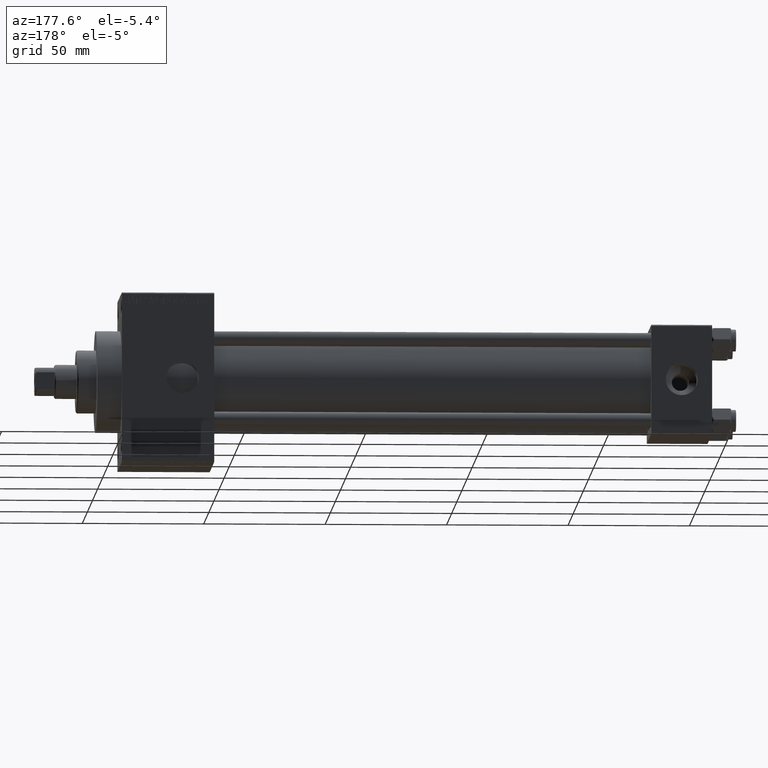
[diagram: clean part render]
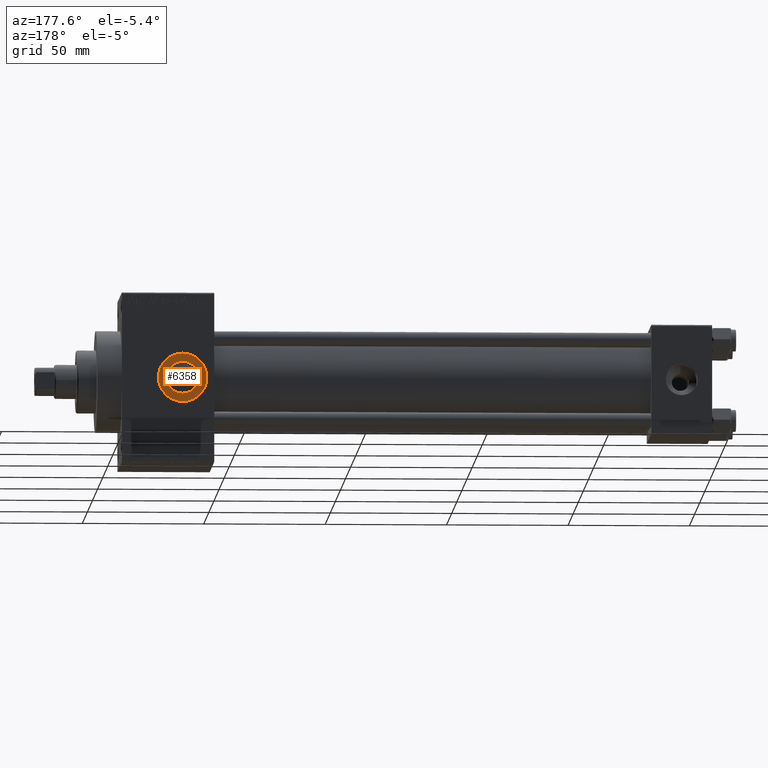
[diagram: same view with one face highlighted and labeled with its STEP entity id]
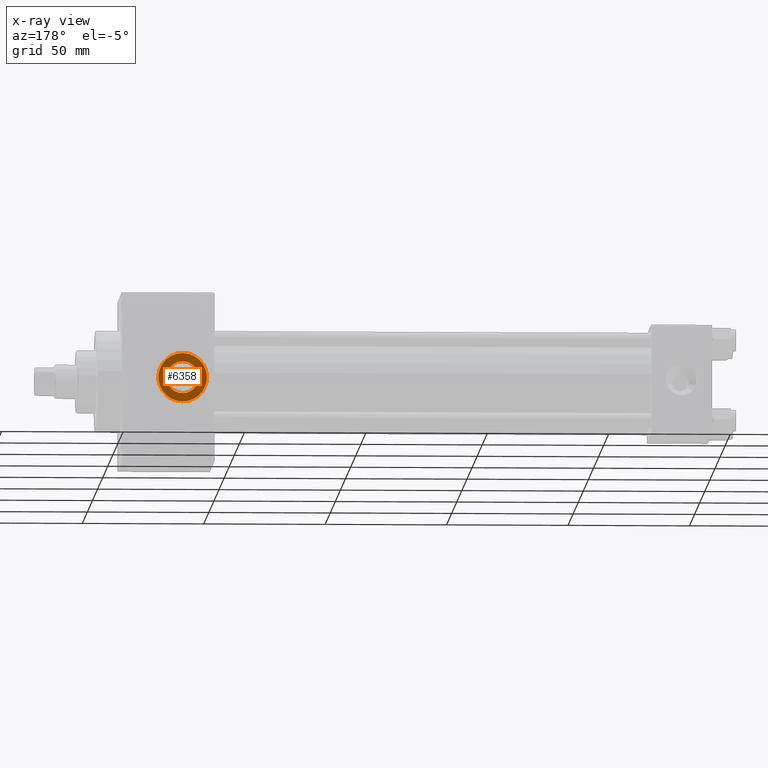
[diagram: x-ray of the same camera — body ghosted, the highlighted face saturated]
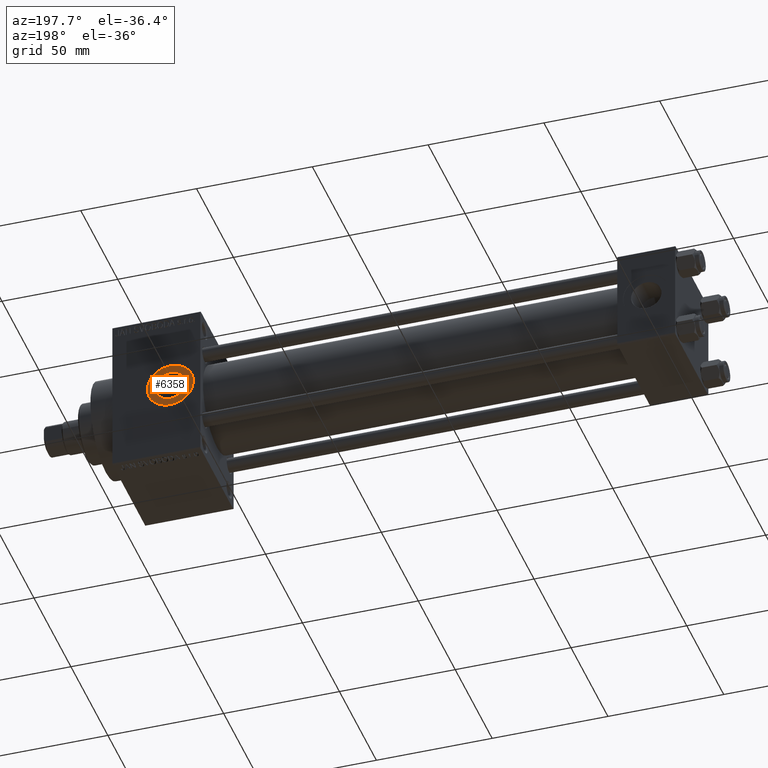
[diagram: same view with one face highlighted and labeled with its STEP entity id]
A machine part, auxiliary view. The second image highlights one B-rep face of the part: STEP entity #6358.
The next image is the same camera in x-ray: the body ghosted, the highlighted face saturated — about 0% of this face is hidden behind the body in this view.
A second angle (auxiliary view) of the same face is appended — the face is thin or edge-on in the first view.
In plain terms, the highlighted planar face has unit normal (0, 1, 0).
Its self-contained STEP definition (entity closure, byte-faithful):
#649 = CARTESIAN_POINT ( 'NONE',  ( 218.0000000000000284, 22.29999999999999716, 6.580000000000015170 ) ) ;
#1117 = CARTESIAN_POINT ( 'NONE',  ( 218.0000000000000284, 22.29999999999999716, 0.000000000000000000 ) ) ;
#2047 = CIRCLE ( 'NONE', #29825, 6.580000000000015170 ) ;
#2223 = AXIS2_PLACEMENT_3D ( 'NONE', #23188, #12508, #5030 ) ;
#2386 = CARTESIAN_POINT ( 'NONE',  ( 218.0000000000000284, 22.29999999999999716, 0.000000000000000000 ) ) ;
#2717 = EDGE_CURVE ( 'NONE', #41150, #9735, #2047, .T. ) ;
#2978 = AXIS2_PLACEMENT_3D ( 'NONE', #13849, #27999, #6393 ) ;
#4099 = ORIENTED_EDGE ( 'NONE', *, *, #21388, .T. ) ;
#5030 = DIRECTION ( 'NONE',  ( 0.000000000000000000, 0.000000000000000000, 1.000000000000000000 ) ) ;
#6358 = ADVANCED_FACE ( 'NONE', ( #47331, #10130 ), #40391, .T. ) ;
#6393 = DIRECTION ( 'NONE',  ( 0.000000000000000000, -0.000000000000000000, 1.000000000000000000 ) ) ;
#7008 = CARTESIAN_POINT ( 'NONE',  ( 218.0000000000000284, 22.29999999999999716, 0.000000000000000000 ) ) ;
#7233 = EDGE_CURVE ( 'NONE', #43777, #18068, #26796, .T. ) ;
#8083 = ORIENTED_EDGE ( 'NONE', *, *, #8210, .F. ) ;
#8210 = EDGE_CURVE ( 'NONE', #9735, #41150, #10979, .T. ) ;
#8576 = DIRECTION ( 'NONE',  ( 0.000000000000000000, 1.000000000000000000, 0.000000000000000000 ) ) ;
#9735 = VERTEX_POINT ( 'NONE', #649 ) ;
#10130 = FACE_OUTER_BOUND ( 'NONE', #11340, .T. ) ;
#10979 = CIRCLE ( 'NONE', #2223, 6.580000000000015170 ) ;
#11340 = EDGE_LOOP ( 'NONE', ( #4099, #19363 ) ) ;
#12508 = DIRECTION ( 'NONE',  ( 0.000000000000000000, 1.000000000000000000, 0.000000000000000000 ) ) ;
#13849 = CARTESIAN_POINT ( 'NONE',  ( 218.0000000000000284, 22.29999999999999716, 0.000000000000000000 ) ) ;
#14911 = AXIS2_PLACEMENT_3D ( 'NONE', #1117, #8576, #23723 ) ;
#15281 = CIRCLE ( 'NONE', #29549, 10.00000000000000888 ) ;
#15428 = CARTESIAN_POINT ( 'NONE',  ( 218.0000000000000284, 22.29999999999999716, -10.00000000000000888 ) ) ;
#16692 = CARTESIAN_POINT ( 'NONE',  ( 218.0000000000000284, 22.29999999999999716, -6.580000000000015170 ) ) ;
#17670 = DIRECTION ( 'NONE',  ( 0.000000000000000000, 1.000000000000000000, 0.000000000000000000 ) ) ;
#18068 = VERTEX_POINT ( 'NONE', #26437 ) ;
#19363 = ORIENTED_EDGE ( 'NONE', *, *, #7233, .T. ) ;
#21388 = EDGE_CURVE ( 'NONE', #18068, #43777, #15281, .T. ) ;
#23188 = CARTESIAN_POINT ( 'NONE',  ( 218.0000000000000284, 22.29999999999999716, 0.000000000000000000 ) ) ;
#23723 = DIRECTION ( 'NONE',  ( 0.000000000000000000, 0.000000000000000000, 1.000000000000000000 ) ) ;
#25623 = DIRECTION ( 'NONE',  ( 0.000000000000000000, 0.000000000000000000, 1.000000000000000000 ) ) ;
#26437 = CARTESIAN_POINT ( 'NONE',  ( 218.0000000000000284, 22.29999999999999716, 10.00000000000000888 ) ) ;
#26796 = CIRCLE ( 'NONE', #14911, 10.00000000000000888 ) ;
#27999 = DIRECTION ( 'NONE',  ( 0.000000000000000000, 1.000000000000000000, 0.000000000000000000 ) ) ;
#29199 = DIRECTION ( 'NONE',  ( 0.000000000000000000, 1.000000000000000000, 0.000000000000000000 ) ) ;
#29549 = AXIS2_PLACEMENT_3D ( 'NONE', #7008, #17670, #25623 ) ;
#29804 = ORIENTED_EDGE ( 'NONE', *, *, #2717, .F. ) ;
#29825 = AXIS2_PLACEMENT_3D ( 'NONE', #2386, #29199, #33166 ) ;
#33166 = DIRECTION ( 'NONE',  ( 0.000000000000000000, 0.000000000000000000, 1.000000000000000000 ) ) ;
#40391 = PLANE ( 'NONE',  #2978 ) ;
#41150 = VERTEX_POINT ( 'NONE', #16692 ) ;
#43777 = VERTEX_POINT ( 'NONE', #15428 ) ;
#47007 = EDGE_LOOP ( 'NONE', ( #8083, #29804 ) ) ;
#47331 = FACE_BOUND ( 'NONE', #47007, .T. ) ;